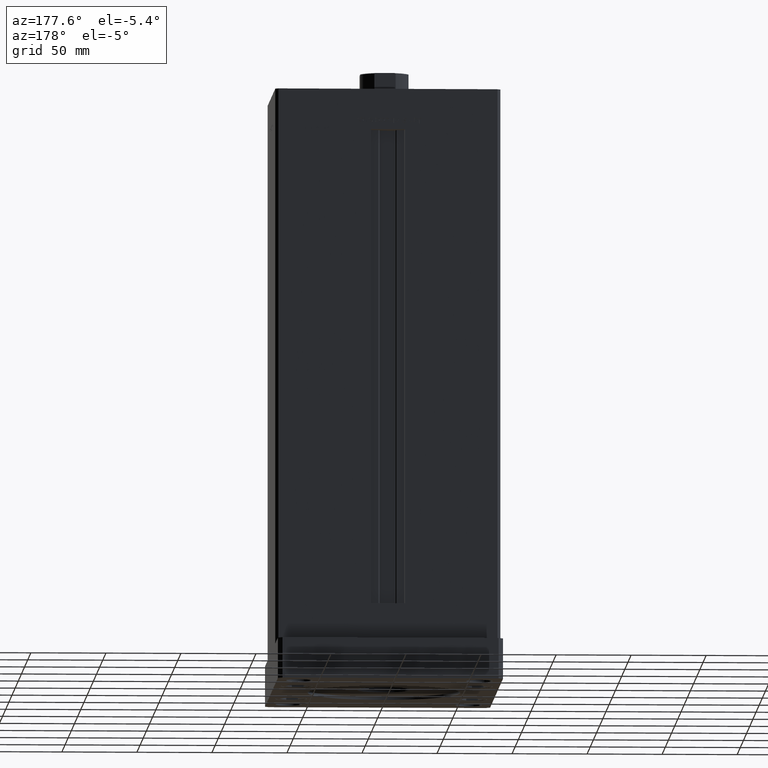
[diagram: clean part render]
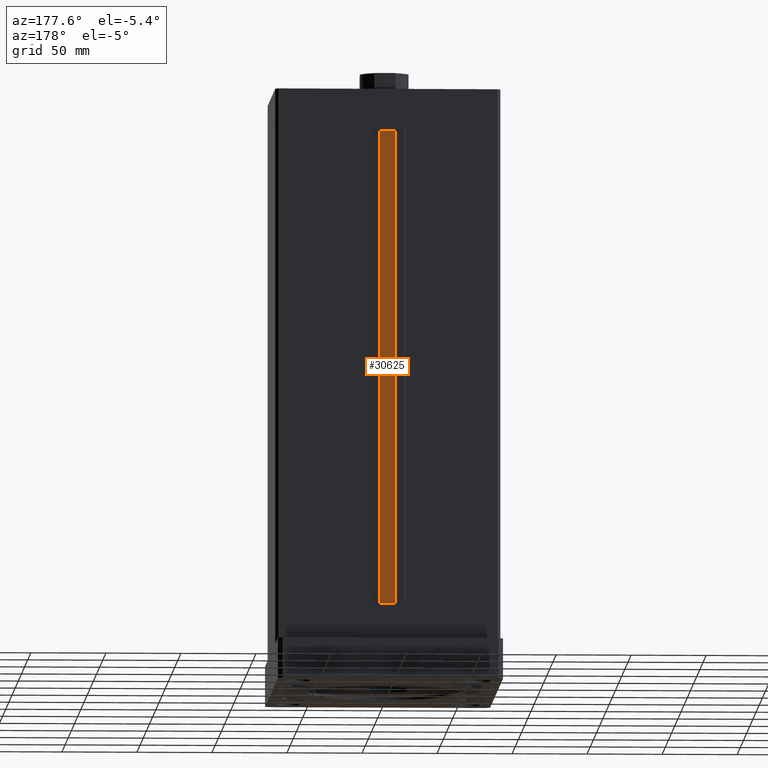
[diagram: same view with one face highlighted and labeled with its STEP entity id]
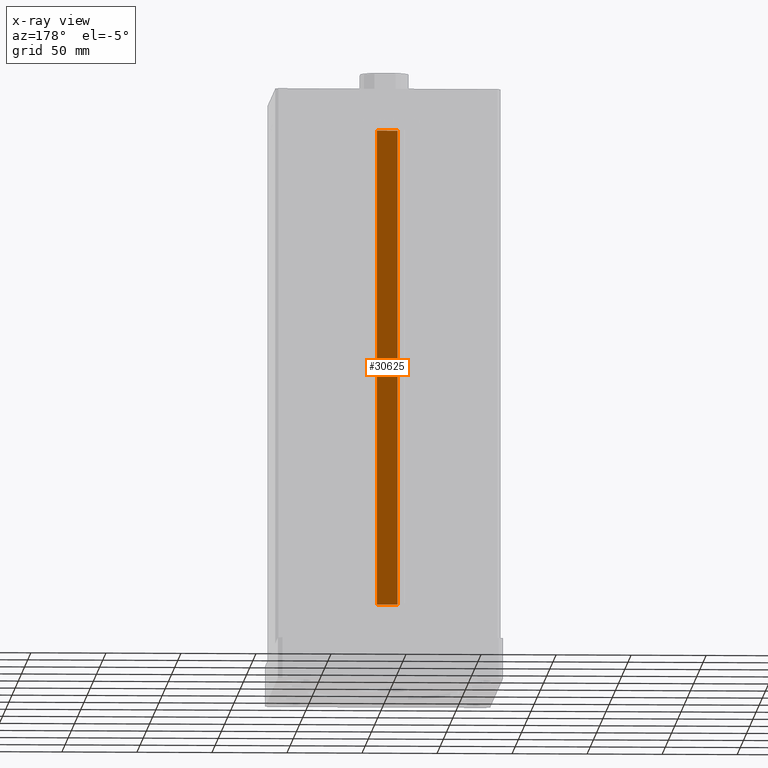
[diagram: x-ray of the same camera — body ghosted, the highlighted face saturated]
A machine part, auxiliary view. The second image highlights one B-rep face of the part: STEP entity #30625.
The next image is the same camera in x-ray: the body ghosted, the highlighted face saturated — about 0% of this face is hidden behind the body in this view.
In plain terms, the highlighted planar face has unit normal (0, -1, 0).
Its self-contained STEP definition (entity closure, byte-faithful):
#1541 = VECTOR ( 'NONE', #32011, 1000.000000000000000 ) ;
#2378 = VECTOR ( 'NONE', #51317, 1000.000000000000000 ) ;
#3355 = FACE_OUTER_BOUND ( 'NONE', #18860, .T. ) ;
#5855 = VECTOR ( 'NONE', #49416, 1000.000000000000000 ) ;
#7066 = LINE ( 'NONE', #22827, #1541 ) ;
#7759 = CARTESIAN_POINT ( 'NONE',  ( 6.876153656360466826, 51.99999999999986500, 317.0000000000000000 ) ) ;
#7916 = LINE ( 'NONE', #24466, #5855 ) ;
#14761 = CARTESIAN_POINT ( 'NONE',  ( 6.876153656360466826, 51.99999999999986500, 0.000000000000000000 ) ) ;
#15847 = PLANE ( 'NONE',  #49148 ) ;
#17985 = ORIENTED_EDGE ( 'NONE', *, *, #31953, .F. ) ;
#18860 = EDGE_LOOP ( 'NONE', ( #17985, #48768, #22610, #27258 ) ) ;
#21620 = VERTEX_POINT ( 'NONE', #44842 ) ;
#22610 = ORIENTED_EDGE ( 'NONE', *, *, #32935, .T. ) ;
#22827 = CARTESIAN_POINT ( 'NONE',  ( 6.876153656360466826, 51.99999999999986500, 0.000000000000000000 ) ) ;
#23716 = DIRECTION ( 'NONE',  ( -1.000000000000000000, 0.000000000000000000, 0.000000000000000000 ) ) ;
#24466 = CARTESIAN_POINT ( 'NONE',  ( 6.876153656360466826, 51.99999999999986500, 0.000000000000000000 ) ) ;
#26403 = CARTESIAN_POINT ( 'NONE',  ( -6.876153656360466826, 51.99999999999986500, 0.000000000000000000 ) ) ;
#27258 = ORIENTED_EDGE ( 'NONE', *, *, #30614, .F. ) ;
#30614 = EDGE_CURVE ( 'NONE', #45893, #21620, #32377, .T. ) ;
#30625 = ADVANCED_FACE ( 'NONE', ( #3355 ), #15847, .F. ) ;
#31299 = DIRECTION ( 'NONE',  ( 0.000000000000000000, -1.000000000000000000, -0.000000000000000000 ) ) ;
#31779 = VERTEX_POINT ( 'NONE', #26403 ) ;
#31953 = EDGE_CURVE ( 'NONE', #44477, #45893, #7916, .T. ) ;
#32011 = DIRECTION ( 'NONE',  ( 1.000000000000000000, -0.000000000000000000, -0.000000000000000000 ) ) ;
#32377 = LINE ( 'NONE', #52463, #37130 ) ;
#32935 = EDGE_CURVE ( 'NONE', #31779, #21620, #42335, .T. ) ;
#33778 = EDGE_CURVE ( 'NONE', #31779, #44477, #7066, .T. ) ;
#34741 = CARTESIAN_POINT ( 'NONE',  ( -6.876153656360466826, 51.99999999999986500, 0.000000000000000000 ) ) ;
#34953 = CARTESIAN_POINT ( 'NONE',  ( 6.876153656360466826, 51.99999999999986500, 0.000000000000000000 ) ) ;
#37130 = VECTOR ( 'NONE', #23716, 1000.000000000000000 ) ;
#40224 = DIRECTION ( 'NONE',  ( 0.000000000000000000, 0.000000000000000000, -1.000000000000000000 ) ) ;
#42335 = LINE ( 'NONE', #34741, #2378 ) ;
#44477 = VERTEX_POINT ( 'NONE', #34953 ) ;
#44842 = CARTESIAN_POINT ( 'NONE',  ( -6.876153656360466826, 51.99999999999986500, 317.0000000000000000 ) ) ;
#45893 = VERTEX_POINT ( 'NONE', #7759 ) ;
#48768 = ORIENTED_EDGE ( 'NONE', *, *, #33778, .F. ) ;
#49148 = AXIS2_PLACEMENT_3D ( 'NONE', #14761, #31299, #40224 ) ;
#49416 = DIRECTION ( 'NONE',  ( -0.000000000000000000, -0.000000000000000000, 1.000000000000000000 ) ) ;
#51317 = DIRECTION ( 'NONE',  ( -0.000000000000000000, -0.000000000000000000, 1.000000000000000000 ) ) ;
#52463 = CARTESIAN_POINT ( 'NONE',  ( 0.000000000000000000, 51.99999999999986500, 317.0000000000000000 ) ) ;